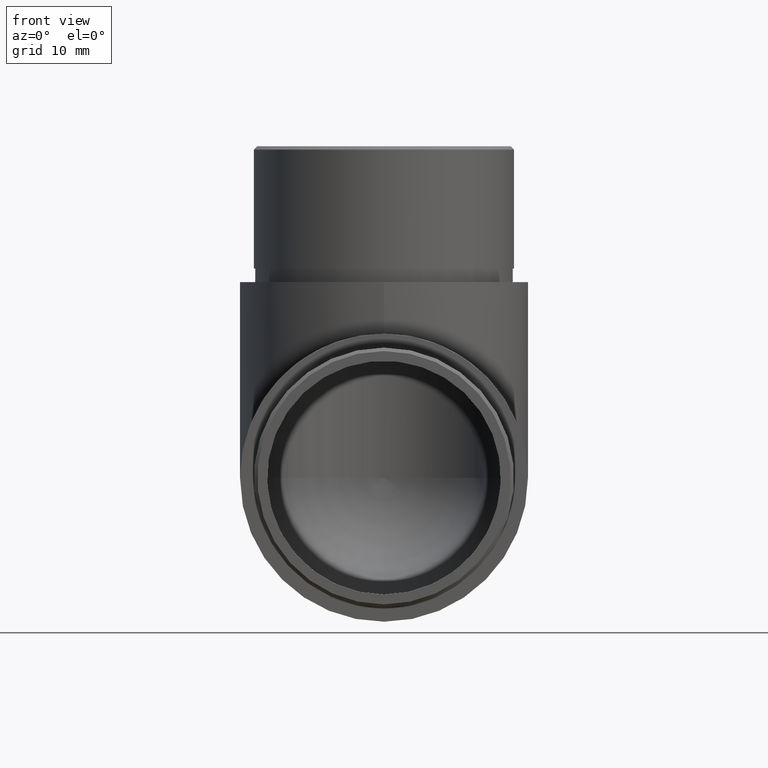
[diagram: clean part render]
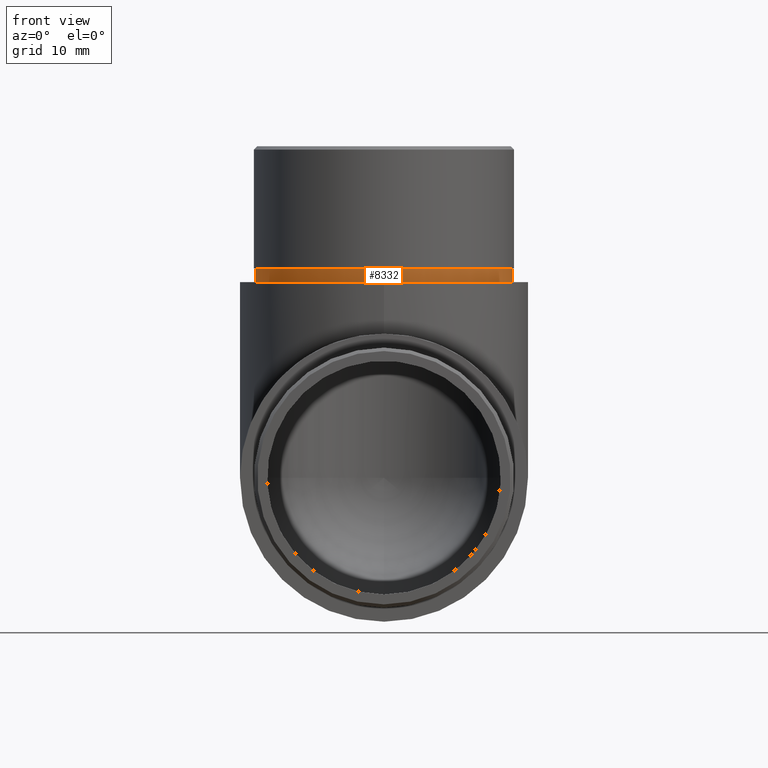
[diagram: same view with one face highlighted and labeled with its STEP entity id]
A machine part, front view. The second image highlights one B-rep face of the part: STEP entity #8332.
In plain terms, the highlighted cylindrical surface (bore or boss wall) has radius 18.95 mm, axis along (-0, -0, -1).
Its self-contained STEP definition (entity closure, byte-faithful):
#601 = DIRECTION ( 'NONE',  ( 1.000000000000000000, 0.0000000000000000000, 0.0000000000000000000 ) ) ;
#686 = DIRECTION ( 'NONE',  ( 0.0000000000000000000, 0.0000000000000000000, 1.000000000000000000 ) ) ;
#713 = CYLINDRICAL_SURFACE ( 'NONE', #6188, 18.94999999999999900 ) ;
#981 = EDGE_LOOP ( 'NONE', ( #6366 ) ) ;
#1807 = AXIS2_PLACEMENT_3D ( 'NONE', #4037, #11632, #2193 ) ;
#2168 = VERTEX_POINT ( 'NONE', #6306 ) ;
#2193 = DIRECTION ( 'NONE',  ( 1.000000000000000000, 0.0000000000000000000, 0.0000000000000000000 ) ) ;
#2379 = CARTESIAN_POINT ( 'NONE',  ( 18.94999999999999600, 28.80000000000000800, 50.00000000000000000 ) ) ;
#4037 = CARTESIAN_POINT ( 'NONE',  ( -3.469446951953614200E-015, 28.80000000000000800, 52.00000000000000700 ) ) ;
#4860 = DIRECTION ( 'NONE',  ( -0.0000000000000000000, -0.0000000000000000000, -1.000000000000000000 ) ) ;
#5458 = CARTESIAN_POINT ( 'NONE',  ( -3.469446951953614200E-015, 28.80000000000000800, 50.00000000000000000 ) ) ;
#5483 = CIRCLE ( 'NONE', #1807, 18.94999999999999900 ) ;
#5512 = CIRCLE ( 'NONE', #7870, 18.94999999999999900 ) ;
#5991 = DIRECTION ( 'NONE',  ( -1.000000000000000000, 0.0000000000000000000, 0.0000000000000000000 ) ) ;
#6188 = AXIS2_PLACEMENT_3D ( 'NONE', #7650, #4860, #5991 ) ;
#6306 = CARTESIAN_POINT ( 'NONE',  ( 18.94999999999999600, 28.80000000000000800, 52.00000000000000700 ) ) ;
#6366 = ORIENTED_EDGE ( 'NONE', *, *, #11478, .F. ) ;
#7134 = EDGE_CURVE ( 'NONE', #9313, #9313, #5512, .T. ) ;
#7650 = CARTESIAN_POINT ( 'NONE',  ( -3.469446951953614200E-015, 28.80000000000000800, 52.00000000000000700 ) ) ;
#7870 = AXIS2_PLACEMENT_3D ( 'NONE', #5458, #686, #601 ) ;
#8332 = ADVANCED_FACE ( 'NONE', ( #12329, #10832 ), #713, .T. ) ;
#8849 = EDGE_LOOP ( 'NONE', ( #9422 ) ) ;
#9313 = VERTEX_POINT ( 'NONE', #2379 ) ;
#9422 = ORIENTED_EDGE ( 'NONE', *, *, #7134, .T. ) ;
#10832 = FACE_OUTER_BOUND ( 'NONE', #8849, .T. ) ;
#11478 = EDGE_CURVE ( 'NONE', #2168, #2168, #5483, .T. ) ;
#11632 = DIRECTION ( 'NONE',  ( 0.0000000000000000000, 0.0000000000000000000, 1.000000000000000000 ) ) ;
#12329 = FACE_OUTER_BOUND ( 'NONE', #981, .T. ) ;